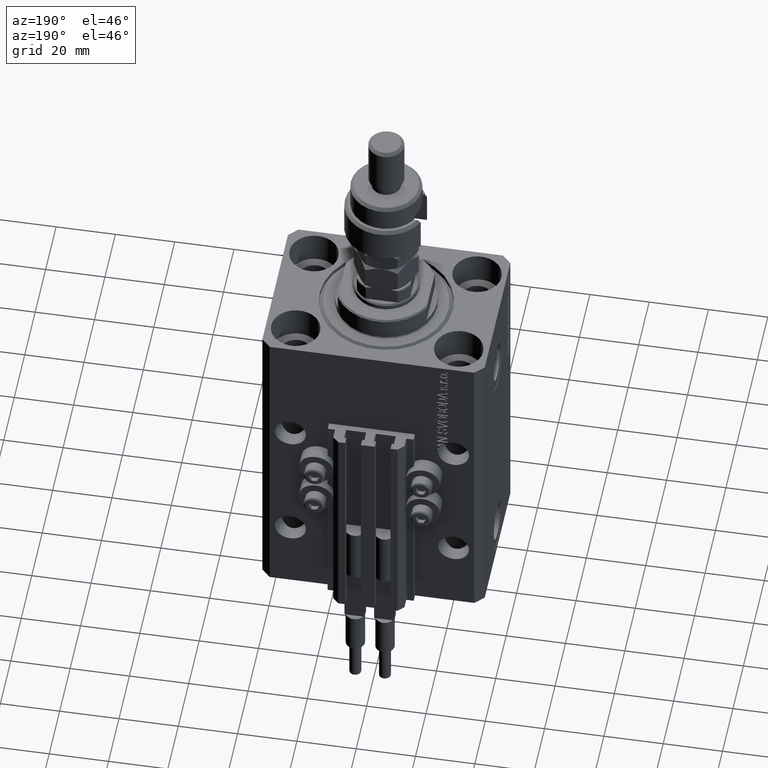
[diagram: clean part render]
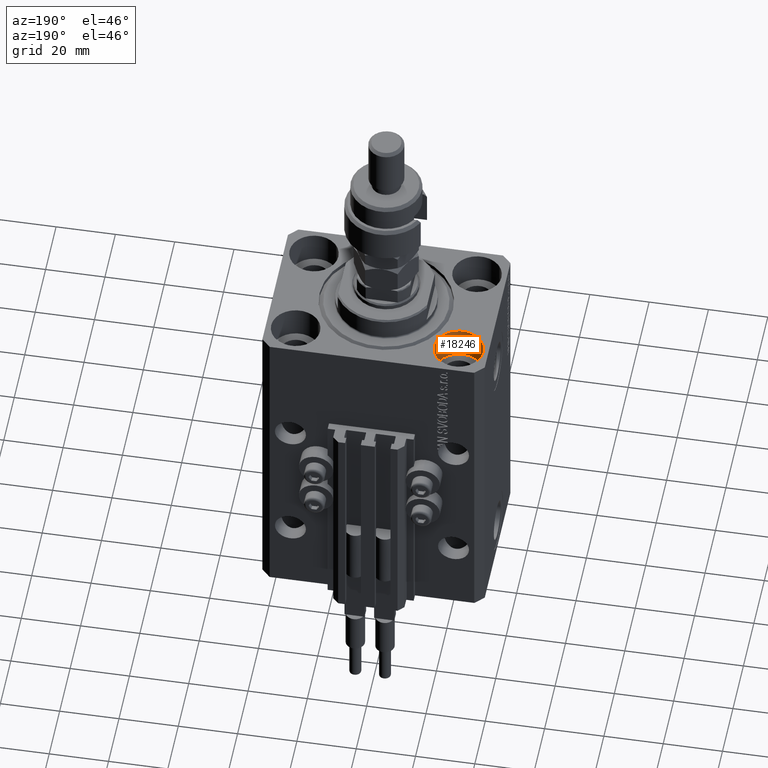
[diagram: same view with one face highlighted and labeled with its STEP entity id]
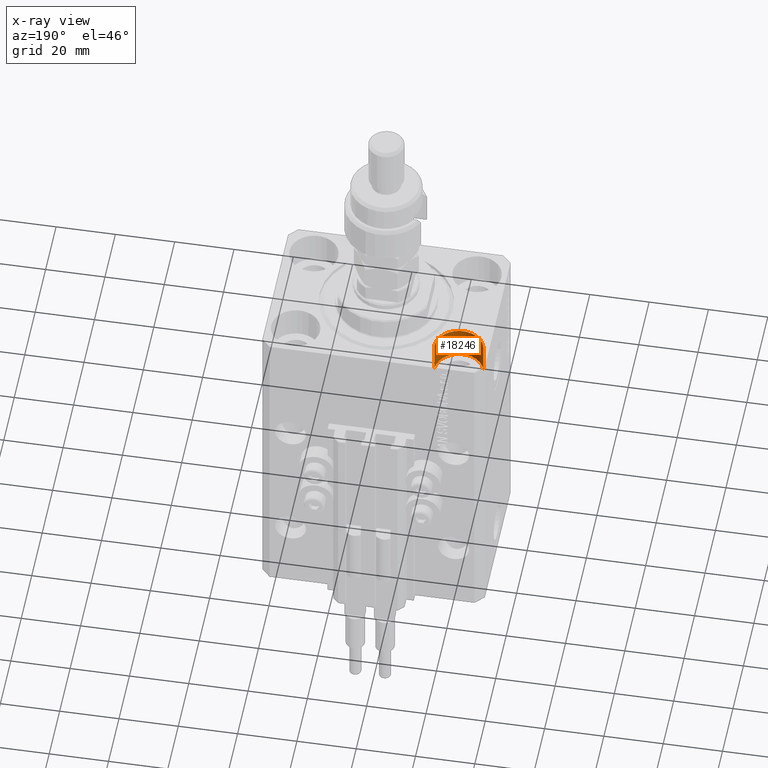
[diagram: x-ray of the same camera — body ghosted, the highlighted face saturated]
A machine part, auxiliary view. The second image highlights one B-rep face of the part: STEP entity #18246.
The next image is the same camera in x-ray: the body ghosted, the highlighted face saturated — about 0% of this face is hidden behind the body in this view.
In plain terms, the highlighted cylindrical surface (edge-blend (fillet) strip) has radius 8.25 mm, axis along (0, 0, 1).
Its self-contained STEP definition (entity closure, byte-faithful):
#1351 = CARTESIAN_POINT ( 'NONE',  ( -19.25000000000000355, 17.50000000000000000, -11.00000000000000000 ) ) ;
#3120 = DIRECTION ( 'NONE',  ( -0.000000000000000000, -0.000000000000000000, 1.000000000000000000 ) ) ;
#4668 = CARTESIAN_POINT ( 'NONE',  ( -27.50000000000000355, 17.50000000000000000, 0.000000000000000000 ) ) ;
#5273 = LINE ( 'NONE', #1351, #47698 ) ;
#6371 = DIRECTION ( 'NONE',  ( 0.000000000000000000, 0.000000000000000000, 1.000000000000000000 ) ) ;
#7230 = CARTESIAN_POINT ( 'NONE',  ( -19.25000000000000355, 17.50000000000000000, -11.00000000000000000 ) ) ;
#8095 = CARTESIAN_POINT ( 'NONE',  ( -27.50000000000000355, 17.50000000000000000, -11.00000000000000000 ) ) ;
#8111 = ORIENTED_EDGE ( 'NONE', *, *, #34698, .F. ) ;
#8801 = CARTESIAN_POINT ( 'NONE',  ( -35.75000000000000711, 17.50000000000000000, 0.000000000000000000 ) ) ;
#8921 = EDGE_LOOP ( 'NONE', ( #8111, #39337, #46990, #9084 ) ) ;
#9084 = ORIENTED_EDGE ( 'NONE', *, *, #45334, .F. ) ;
#10132 = CIRCLE ( 'NONE', #16788, 8.250000000000000000 ) ;
#12525 = FACE_OUTER_BOUND ( 'NONE', #8921, .T. ) ;
#13307 = CIRCLE ( 'NONE', #44046, 8.250000000000000000 ) ;
#16788 = AXIS2_PLACEMENT_3D ( 'NONE', #4668, #48678, #24458 ) ;
#18246 = ADVANCED_FACE ( 'NONE', ( #12525 ), #28402, .F. ) ;
#20420 = AXIS2_PLACEMENT_3D ( 'NONE', #8095, #39597, #27355 ) ;
#22238 = VECTOR ( 'NONE', #3120, 1000.000000000000000 ) ;
#22896 = LINE ( 'NONE', #51044, #22238 ) ;
#24458 = DIRECTION ( 'NONE',  ( 1.000000000000000000, 0.000000000000000000, 0.000000000000000000 ) ) ;
#25055 = DIRECTION ( 'NONE',  ( -0.000000000000000000, -0.000000000000000000, 1.000000000000000000 ) ) ;
#27355 = DIRECTION ( 'NONE',  ( 1.000000000000000000, 0.000000000000000000, 0.000000000000000000 ) ) ;
#28402 = CYLINDRICAL_SURFACE ( 'NONE', #20420, 8.250000000000000000 ) ;
#30300 = EDGE_CURVE ( 'NONE', #31519, #38107, #22896, .T. ) ;
#30469 = CARTESIAN_POINT ( 'NONE',  ( -35.75000000000000711, 17.50000000000000000, -11.00000000000000000 ) ) ;
#31519 = VERTEX_POINT ( 'NONE', #30469 ) ;
#34698 = EDGE_CURVE ( 'NONE', #31519, #47270, #13307, .T. ) ;
#38107 = VERTEX_POINT ( 'NONE', #8801 ) ;
#39337 = ORIENTED_EDGE ( 'NONE', *, *, #30300, .T. ) ;
#39597 = DIRECTION ( 'NONE',  ( -0.000000000000000000, -0.000000000000000000, 1.000000000000000000 ) ) ;
#42775 = EDGE_CURVE ( 'NONE', #38107, #51333, #10132, .T. ) ;
#44046 = AXIS2_PLACEMENT_3D ( 'NONE', #44941, #6371, #49880 ) ;
#44941 = CARTESIAN_POINT ( 'NONE',  ( -27.50000000000000355, 17.50000000000000000, -11.00000000000000000 ) ) ;
#45334 = EDGE_CURVE ( 'NONE', #47270, #51333, #5273, .T. ) ;
#46990 = ORIENTED_EDGE ( 'NONE', *, *, #42775, .T. ) ;
#47270 = VERTEX_POINT ( 'NONE', #7230 ) ;
#47698 = VECTOR ( 'NONE', #25055, 1000.000000000000000 ) ;
#48678 = DIRECTION ( 'NONE',  ( 0.000000000000000000, 0.000000000000000000, 1.000000000000000000 ) ) ;
#49880 = DIRECTION ( 'NONE',  ( 1.000000000000000000, 0.000000000000000000, 0.000000000000000000 ) ) ;
#51044 = CARTESIAN_POINT ( 'NONE',  ( -35.75000000000000711, 17.50000000000000000, -11.00000000000000000 ) ) ;
#51239 = CARTESIAN_POINT ( 'NONE',  ( -19.25000000000000355, 17.50000000000000000, 0.000000000000000000 ) ) ;
#51333 = VERTEX_POINT ( 'NONE', #51239 ) ;